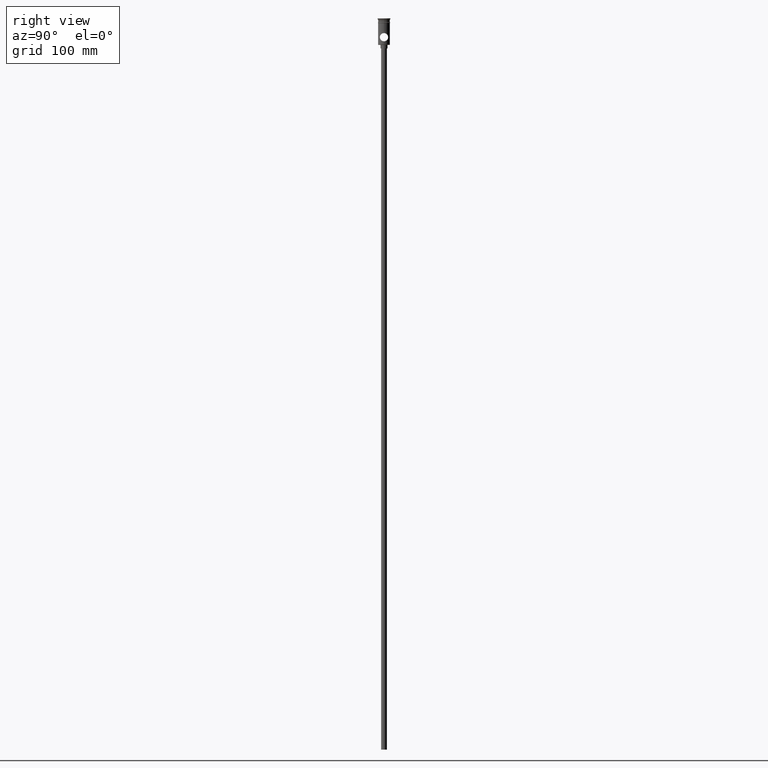
[diagram: clean part render]
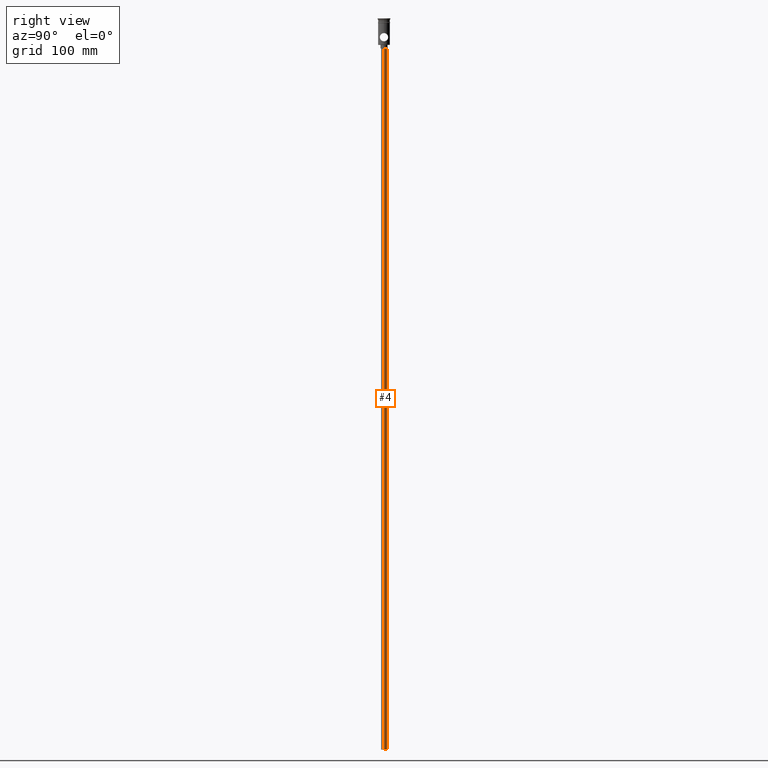
[diagram: same view with one face highlighted and labeled with its STEP entity id]
A machine part, right view. The second image highlights one B-rep face of the part: STEP entity #4.
In plain terms, the highlighted cylindrical surface (edge-blend (fillet) strip) has radius 2.5 mm, axis along (-0, -0, 1).
Its self-contained STEP definition (entity closure, byte-faithful):
#4 = ADVANCED_FACE ( 'NONE', ( #1126 ), #545, .T. ) ;
#46 = CARTESIAN_POINT ( 'NONE',  ( -2.500000000000000000, 3.061616997868383141E-16, -622.4999999999998863 ) ) ;
#191 = DIRECTION ( 'NONE',  ( 0.000000000000000000, 0.000000000000000000, -1.000000000000000000 ) ) ;
#201 = CARTESIAN_POINT ( 'NONE',  ( -2.500000000000000000, 3.061616997868383141E-16, -622.4999999999998863 ) ) ;
#241 = LINE ( 'NONE', #790, #1463 ) ;
#267 = VERTEX_POINT ( 'NONE', #1128 ) ;
#295 = VERTEX_POINT ( 'NONE', #892 ) ;
#426 = EDGE_CURVE ( 'NONE', #295, #1101, #1362, .T. ) ;
#438 = DIRECTION ( 'NONE',  ( -0.000000000000000000, -0.000000000000000000, 1.000000000000000000 ) ) ;
#545 = CYLINDRICAL_SURFACE ( 'NONE', #665, 2.500000000000000000 ) ;
#566 = DIRECTION ( 'NONE',  ( -0.000000000000000000, -0.000000000000000000, 1.000000000000000000 ) ) ;
#584 = DIRECTION ( 'NONE',  ( 1.000000000000000000, 0.000000000000000000, 0.000000000000000000 ) ) ;
#646 = EDGE_LOOP ( 'NONE', ( #1240, #1322, #1131, #923 ) ) ;
#665 = AXIS2_PLACEMENT_3D ( 'NONE', #1010, #438, #584 ) ;
#790 = CARTESIAN_POINT ( 'NONE',  ( 2.500000000000000000, 0.000000000000000000, -622.4999999999998863 ) ) ;
#794 = EDGE_CURVE ( 'NONE', #897, #295, #1285, .T. ) ;
#804 = CARTESIAN_POINT ( 'NONE',  ( 0.000000000000000000, 0.000000000000000000, -622.4999999999998863 ) ) ;
#831 = DIRECTION ( 'NONE',  ( -0.000000000000000000, -0.000000000000000000, 1.000000000000000000 ) ) ;
#892 = CARTESIAN_POINT ( 'NONE',  ( -2.500000000000000000, 3.061616997868383141E-16, -25.50000000000000000 ) ) ;
#897 = VERTEX_POINT ( 'NONE', #201 ) ;
#909 = CARTESIAN_POINT ( 'NONE',  ( 0.000000000000000000, 0.000000000000000000, -25.50000000000000000 ) ) ;
#923 = ORIENTED_EDGE ( 'NONE', *, *, #989, .F. ) ;
#989 = EDGE_CURVE ( 'NONE', #267, #1101, #241, .T. ) ;
#1010 = CARTESIAN_POINT ( 'NONE',  ( 0.000000000000000000, 0.000000000000000000, -622.4999999999998863 ) ) ;
#1101 = VERTEX_POINT ( 'NONE', #1169 ) ;
#1126 = FACE_OUTER_BOUND ( 'NONE', #646, .T. ) ;
#1128 = CARTESIAN_POINT ( 'NONE',  ( 2.500000000000000000, 0.000000000000000000, -622.4999999999998863 ) ) ;
#1131 = ORIENTED_EDGE ( 'NONE', *, *, #426, .T. ) ;
#1161 = VECTOR ( 'NONE', #831, 1000.000000000000000 ) ;
#1169 = CARTESIAN_POINT ( 'NONE',  ( 2.500000000000000000, 0.000000000000000000, -25.50000000000000000 ) ) ;
#1240 = ORIENTED_EDGE ( 'NONE', *, *, #1421, .F. ) ;
#1270 = DIRECTION ( 'NONE',  ( 0.000000000000000000, 0.000000000000000000, -1.000000000000000000 ) ) ;
#1285 = LINE ( 'NONE', #46, #1161 ) ;
#1314 = CIRCLE ( 'NONE', #1339, 2.500000000000000000 ) ;
#1322 = ORIENTED_EDGE ( 'NONE', *, *, #794, .T. ) ;
#1339 = AXIS2_PLACEMENT_3D ( 'NONE', #804, #1270, #1370 ) ;
#1362 = CIRCLE ( 'NONE', #1461, 2.500000000000000000 ) ;
#1370 = DIRECTION ( 'NONE',  ( -1.000000000000000000, 0.000000000000000000, 0.000000000000000000 ) ) ;
#1421 = EDGE_CURVE ( 'NONE', #897, #267, #1314, .T. ) ;
#1436 = DIRECTION ( 'NONE',  ( -1.000000000000000000, 0.000000000000000000, 0.000000000000000000 ) ) ;
#1461 = AXIS2_PLACEMENT_3D ( 'NONE', #909, #191, #1436 ) ;
#1463 = VECTOR ( 'NONE', #566, 1000.000000000000000 ) ;